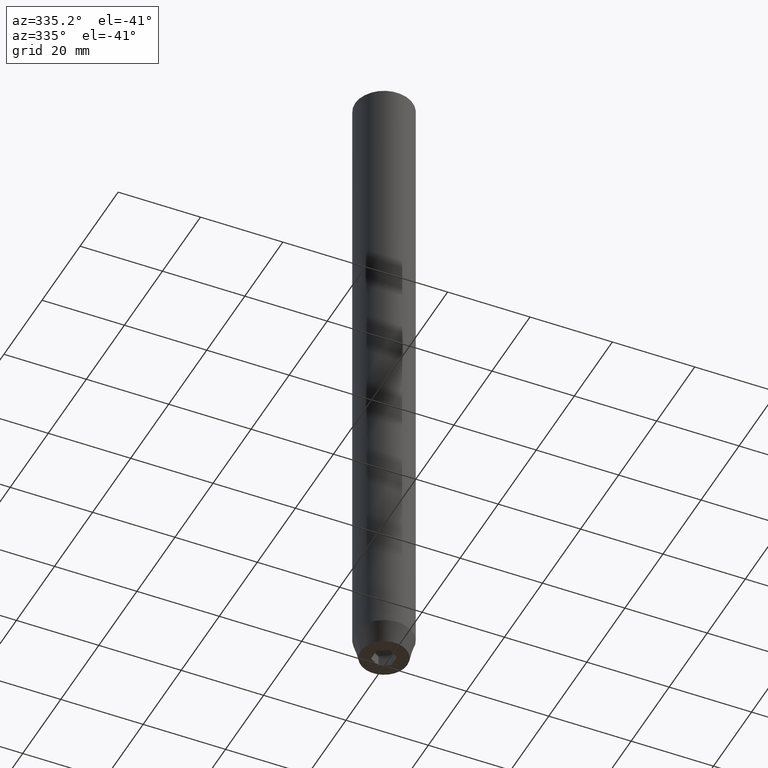
[diagram: clean part render]
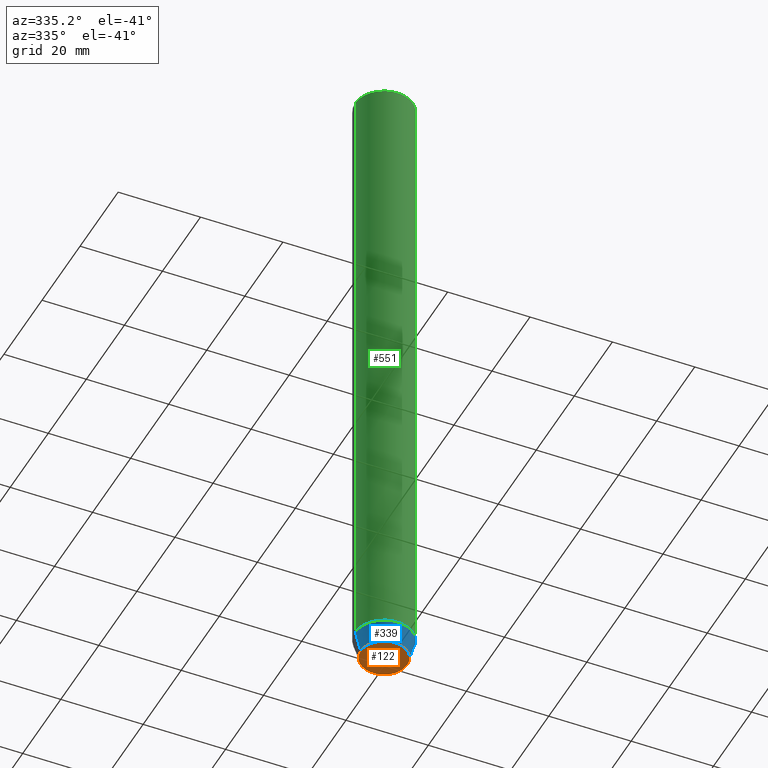
[diagram: same view with three faces highlighted in distinct colors, each labeled with its STEP entity id]
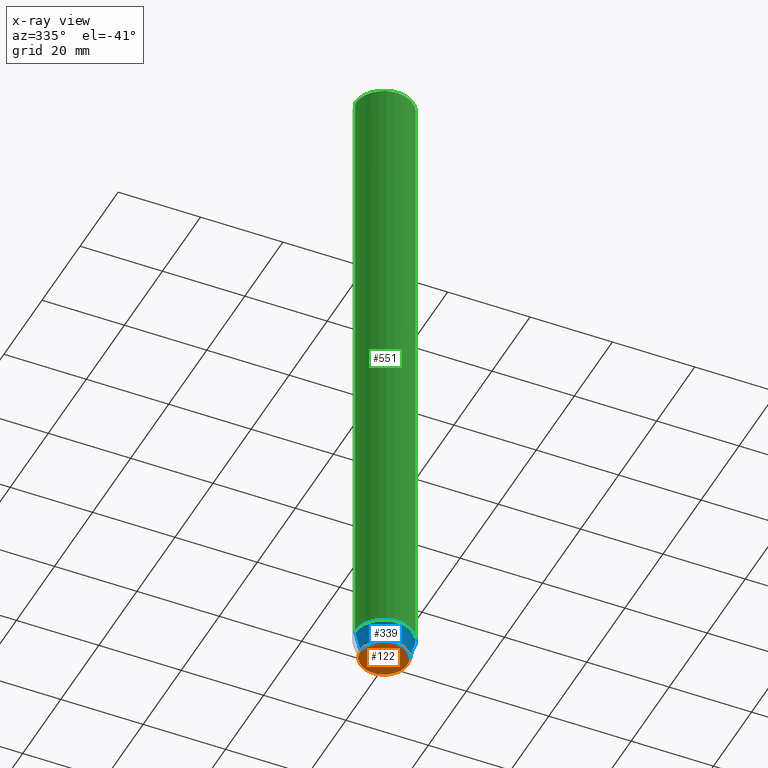
[diagram: x-ray of the same camera — body ghosted, the three highlighted faces saturated]
A machine part, auxiliary view with three faces highlighted in distinct colors.
The next image is the same camera in x-ray (body ghosted, the three faces saturated) — at least one of them is partly hidden behind the body in this view.
Their STEP definitions:

[orange] entity #122 — the highlighted planar face has unit normal (0, 0, -1).
#4 = VERTEX_POINT ( 'NONE', #475 ) ;
#26 = CARTESIAN_POINT ( 'NONE',  ( 2.500000000000000000, 0.000000000000000000, -160.0000000000000000 ) ) ;
#28 = AXIS2_PLACEMENT_3D ( 'NONE', #362, #89, #233 ) ;
#34 = DIRECTION ( 'NONE',  ( 1.000000000000000000, 0.000000000000000000, 0.000000000000000000 ) ) ;
#35 = CIRCLE ( 'NONE', #546, 5.660254037844375752 ) ;
#46 = LINE ( 'NONE', #489, #318 ) ;
#55 = DIRECTION ( 'NONE',  ( 0.8660254037844385966, 0.5000000000000001110, 0.000000000000000000 ) ) ;
#59 = ORIENTED_EDGE ( 'NONE', *, *, #199, .F. ) ;
#60 = ORIENTED_EDGE ( 'NONE', *, *, #565, .F. ) ;
#78 = EDGE_CURVE ( 'NONE', #4, #534, #356, .T. ) ;
#89 = DIRECTION ( 'NONE',  ( 0.000000000000000000, 0.000000000000000000, -1.000000000000000000 ) ) ;
#93 = ORIENTED_EDGE ( 'NONE', *, *, #413, .F. ) ;
#100 = DIRECTION ( 'NONE',  ( -0.000000000000000000, -0.000000000000000000, 1.000000000000000000 ) ) ;
#113 = LINE ( 'NONE', #473, #393 ) ;
#122 = ADVANCED_FACE ( 'NONE', ( #275, #414 ), #181, .T. ) ;
#132 = CARTESIAN_POINT ( 'NONE',  ( 1.250000000000000222, 2.165063509461096825, -160.0000000000000000 ) ) ;
#146 = VECTOR ( 'NONE', #430, 1000.000000000000114 ) ;
#162 = CARTESIAN_POINT ( 'NONE',  ( 5.660254037844375752, 0.000000000000000000, -160.0000000000000000 ) ) ;
#179 = VERTEX_POINT ( 'NONE', #336 ) ;
#181 = PLANE ( 'NONE',  #28 ) ;
#183 = EDGE_LOOP ( 'NONE', ( #93, #60 ) ) ;
#184 = CARTESIAN_POINT ( 'NONE',  ( 2.500000000000000000, 1.443375672974064328, -160.0000000000000000 ) ) ;
#197 = LINE ( 'NONE', #26, #554 ) ;
#199 = EDGE_CURVE ( 'NONE', #534, #179, #207, .T. ) ;
#207 = LINE ( 'NONE', #283, #146 ) ;
#210 = EDGE_CURVE ( 'NONE', #302, #4, #197, .T. ) ;
#216 = VECTOR ( 'NONE', #265, 1000.000000000000000 ) ;
#222 = CARTESIAN_POINT ( 'NONE',  ( 0.000000000000000000, 0.000000000000000000, -160.0000000000000000 ) ) ;
#229 = CIRCLE ( 'NONE', #556, 5.660254037844375752 ) ;
#233 = DIRECTION ( 'NONE',  ( -1.000000000000000000, 0.000000000000000000, -0.000000000000000000 ) ) ;
#265 = DIRECTION ( 'NONE',  ( 0.8660254037844385966, -0.5000000000000001110, 0.000000000000000000 ) ) ;
#275 = FACE_BOUND ( 'NONE', #359, .T. ) ;
#283 = CARTESIAN_POINT ( 'NONE',  ( -1.249999999999999556, -2.165063509461096825, -160.0000000000000000 ) ) ;
#302 = VERTEX_POINT ( 'NONE', #184 ) ;
#305 = ORIENTED_EDGE ( 'NONE', *, *, #78, .F. ) ;
#306 = VECTOR ( 'NONE', #491, 999.9999999999998863 ) ;
#318 = VECTOR ( 'NONE', #348, 1000.000000000000000 ) ;
#320 = ORIENTED_EDGE ( 'NONE', *, *, #446, .F. ) ;
#325 = DIRECTION ( 'NONE',  ( 1.000000000000000000, 0.000000000000000000, 0.000000000000000000 ) ) ;
#335 = ORIENTED_EDGE ( 'NONE', *, *, #523, .F. ) ;
#336 = CARTESIAN_POINT ( 'NONE',  ( -2.500000000000000444, -1.443375672974064328, -160.0000000000000000 ) ) ;
#348 = DIRECTION ( 'NONE',  ( 0.000000000000000000, 1.000000000000000000, 0.000000000000000000 ) ) ;
#356 = LINE ( 'NONE', #532, #306 ) ;
#359 = EDGE_LOOP ( 'NONE', ( #320, #335, #59, #305, #480, #416 ) ) ;
#362 = CARTESIAN_POINT ( 'NONE',  ( 0.000000000000000000, 5.660254037844375752, -160.0000000000000000 ) ) ;
#393 = VECTOR ( 'NONE', #55, 1000.000000000000000 ) ;
#397 = CARTESIAN_POINT ( 'NONE',  ( -5.660254037844375752, 7.752169791919234826E-16, -160.0000000000000000 ) ) ;
#400 = CARTESIAN_POINT ( 'NONE',  ( 0.000000000000000000, 2.886751345948129099, -160.0000000000000000 ) ) ;
#413 = EDGE_CURVE ( 'NONE', #522, #531, #229, .T. ) ;
#414 = FACE_OUTER_BOUND ( 'NONE', #183, .T. ) ;
#416 = ORIENTED_EDGE ( 'NONE', *, *, #542, .F. ) ;
#422 = VERTEX_POINT ( 'NONE', #558 ) ;
#427 = CARTESIAN_POINT ( 'NONE',  ( 0.000000000000000000, 0.000000000000000000, -160.0000000000000000 ) ) ;
#430 = DIRECTION ( 'NONE',  ( -0.8660254037844387076, 0.4999999999999998890, 0.000000000000000000 ) ) ;
#441 = LINE ( 'NONE', #132, #216 ) ;
#444 = CARTESIAN_POINT ( 'NONE',  ( 0.000000000000000000, -2.886751345948128211, -160.0000000000000000 ) ) ;
#446 = EDGE_CURVE ( 'NONE', #422, #557, #113, .T. ) ;
#473 = CARTESIAN_POINT ( 'NONE',  ( -1.250000000000000444, 2.165063509461097269, -160.0000000000000000 ) ) ;
#475 = CARTESIAN_POINT ( 'NONE',  ( 2.500000000000000000, -1.443375672974064106, -160.0000000000000000 ) ) ;
#480 = ORIENTED_EDGE ( 'NONE', *, *, #210, .F. ) ;
#482 = DIRECTION ( 'NONE',  ( -0.000000000000000000, -0.000000000000000000, 1.000000000000000000 ) ) ;
#489 = CARTESIAN_POINT ( 'NONE',  ( -2.500000000000000444, 0.000000000000000000, -160.0000000000000000 ) ) ;
#491 = DIRECTION ( 'NONE',  ( -0.8660254037844387076, -0.5000000000000001110, 0.000000000000000000 ) ) ;
#522 = VERTEX_POINT ( 'NONE', #162 ) ;
#523 = EDGE_CURVE ( 'NONE', #179, #422, #46, .T. ) ;
#531 = VERTEX_POINT ( 'NONE', #397 ) ;
#532 = CARTESIAN_POINT ( 'NONE',  ( 1.249999999999999778, -2.165063509461096380, -160.0000000000000000 ) ) ;
#534 = VERTEX_POINT ( 'NONE', #444 ) ;
#542 = EDGE_CURVE ( 'NONE', #557, #302, #441, .T. ) ;
#546 = AXIS2_PLACEMENT_3D ( 'NONE', #222, #482, #34 ) ;
#552 = DIRECTION ( 'NONE',  ( 0.000000000000000000, -1.000000000000000000, 0.000000000000000000 ) ) ;
#554 = VECTOR ( 'NONE', #552, 1000.000000000000000 ) ;
#556 = AXIS2_PLACEMENT_3D ( 'NONE', #427, #100, #325 ) ;
#557 = VERTEX_POINT ( 'NONE', #400 ) ;
#558 = CARTESIAN_POINT ( 'NONE',  ( -2.500000000000000444, 1.443375672974064772, -160.0000000000000000 ) ) ;
#565 = EDGE_CURVE ( 'NONE', #531, #522, #35, .T. ) ;

[blue] entity #339 — the highlighted conical surface has half-angle 15 deg.
#34 = DIRECTION ( 'NONE',  ( 1.000000000000000000, 0.000000000000000000, 0.000000000000000000 ) ) ;
#35 = CIRCLE ( 'NONE', #546, 5.660254037844375752 ) ;
#61 = EDGE_CURVE ( 'NONE', #531, #194, #309, .T. ) ;
#67 = ORIENTED_EDGE ( 'NONE', *, *, #61, .F. ) ;
#72 = CIRCLE ( 'NONE', #255, 7.000000000000000000 ) ;
#95 = DIRECTION ( 'NONE',  ( -0.000000000000000000, -0.000000000000000000, 1.000000000000000000 ) ) ;
#126 = VECTOR ( 'NONE', #508, 1000.000000000000114 ) ;
#141 = CARTESIAN_POINT ( 'NONE',  ( 0.000000000000000000, 0.000000000000000000, -154.9999999999999716 ) ) ;
#162 = CARTESIAN_POINT ( 'NONE',  ( 5.660254037844375752, 0.000000000000000000, -160.0000000000000000 ) ) ;
#163 = EDGE_LOOP ( 'NONE', ( #67, #237, #470, #223 ) ) ;
#190 = AXIS2_PLACEMENT_3D ( 'NONE', #313, #230, #585 ) ;
#194 = VERTEX_POINT ( 'NONE', #248 ) ;
#222 = CARTESIAN_POINT ( 'NONE',  ( 0.000000000000000000, 0.000000000000000000, -160.0000000000000000 ) ) ;
#223 = ORIENTED_EDGE ( 'NONE', *, *, #354, .F. ) ;
#230 = DIRECTION ( 'NONE',  ( -0.000000000000000000, -0.000000000000000000, 1.000000000000000000 ) ) ;
#237 = ORIENTED_EDGE ( 'NONE', *, *, #565, .T. ) ;
#248 = CARTESIAN_POINT ( 'NONE',  ( -7.000000000000000000, 8.572527594031473190E-16, -154.9999999999999716 ) ) ;
#255 = AXIS2_PLACEMENT_3D ( 'NONE', #141, #95, #277 ) ;
#277 = DIRECTION ( 'NONE',  ( 1.000000000000000000, 0.000000000000000000, 0.000000000000000000 ) ) ;
#290 = CONICAL_SURFACE ( 'NONE', #190, 7.000000000000000000, 0.2617993877991497964 ) ;
#309 = LINE ( 'NONE', #352, #469 ) ;
#313 = CARTESIAN_POINT ( 'NONE',  ( 0.000000000000000000, 0.000000000000000000, -154.9999999999999716 ) ) ;
#315 = CARTESIAN_POINT ( 'NONE',  ( 7.000000000000000000, 0.000000000000000000, -154.9999999999999716 ) ) ;
#339 = ADVANCED_FACE ( 'NONE', ( #548 ), #290, .T. ) ;
#351 = CARTESIAN_POINT ( 'NONE',  ( 7.000000000000000000, 0.000000000000000000, -154.9999999999999716 ) ) ;
#352 = CARTESIAN_POINT ( 'NONE',  ( -7.000000000000000000, 8.572527594031473190E-16, -154.9999999999999716 ) ) ;
#354 = EDGE_CURVE ( 'NONE', #194, #584, #72, .T. ) ;
#389 = EDGE_CURVE ( 'NONE', #522, #584, #537, .T. ) ;
#397 = CARTESIAN_POINT ( 'NONE',  ( -5.660254037844375752, 7.752169791919234826E-16, -160.0000000000000000 ) ) ;
#399 = DIRECTION ( 'NONE',  ( -0.2588190451025210725, 3.169619151431769255E-17, 0.9659258262890680902 ) ) ;
#469 = VECTOR ( 'NONE', #399, 1000.000000000000114 ) ;
#470 = ORIENTED_EDGE ( 'NONE', *, *, #389, .T. ) ;
#482 = DIRECTION ( 'NONE',  ( -0.000000000000000000, -0.000000000000000000, 1.000000000000000000 ) ) ;
#508 = DIRECTION ( 'NONE',  ( 0.2588190451025210725, 0.000000000000000000, 0.9659258262890680902 ) ) ;
#522 = VERTEX_POINT ( 'NONE', #162 ) ;
#531 = VERTEX_POINT ( 'NONE', #397 ) ;
#537 = LINE ( 'NONE', #315, #126 ) ;
#546 = AXIS2_PLACEMENT_3D ( 'NONE', #222, #482, #34 ) ;
#548 = FACE_OUTER_BOUND ( 'NONE', #163, .T. ) ;
#565 = EDGE_CURVE ( 'NONE', #531, #522, #35, .T. ) ;
#584 = VERTEX_POINT ( 'NONE', #351 ) ;
#585 = DIRECTION ( 'NONE',  ( 1.000000000000000000, 0.000000000000000000, 0.000000000000000000 ) ) ;

[green] entity #551 — the highlighted cylindrical surface (edge-blend (fillet) strip) has radius 7 mm, axis along (-0, -0, 1).
#33 = CARTESIAN_POINT ( 'NONE',  ( 7.000000000000000000, 0.000000000000000000, 0.000000000000000000 ) ) ;
#37 = DIRECTION ( 'NONE',  ( -0.000000000000000000, -0.000000000000000000, 1.000000000000000000 ) ) ;
#47 = AXIS2_PLACEMENT_3D ( 'NONE', #394, #37, #353 ) ;
#48 = DIRECTION ( 'NONE',  ( -0.000000000000000000, -0.000000000000000000, 1.000000000000000000 ) ) ;
#51 = EDGE_LOOP ( 'NONE', ( #364, #239, #65, #169 ) ) ;
#65 = ORIENTED_EDGE ( 'NONE', *, *, #257, .T. ) ;
#72 = CIRCLE ( 'NONE', #255, 7.000000000000000000 ) ;
#85 = VECTOR ( 'NONE', #485, 1000.000000000000000 ) ;
#87 = CARTESIAN_POINT ( 'NONE',  ( -7.000000000000000000, 8.572527594031473190E-16, -0.5000000000000186517 ) ) ;
#94 = VERTEX_POINT ( 'NONE', #264 ) ;
#95 = DIRECTION ( 'NONE',  ( -0.000000000000000000, -0.000000000000000000, 1.000000000000000000 ) ) ;
#116 = CARTESIAN_POINT ( 'NONE',  ( 0.000000000000000000, 0.000000000000000000, -0.5000000000000186517 ) ) ;
#138 = CARTESIAN_POINT ( 'NONE',  ( -7.000000000000000000, 8.572527594031473190E-16, 0.000000000000000000 ) ) ;
#141 = CARTESIAN_POINT ( 'NONE',  ( 0.000000000000000000, 0.000000000000000000, -154.9999999999999716 ) ) ;
#168 = EDGE_CURVE ( 'NONE', #94, #355, #555, .T. ) ;
#169 = ORIENTED_EDGE ( 'NONE', *, *, #168, .T. ) ;
#173 = FACE_OUTER_BOUND ( 'NONE', #51, .T. ) ;
#194 = VERTEX_POINT ( 'NONE', #248 ) ;
#214 = LINE ( 'NONE', #33, #85 ) ;
#239 = ORIENTED_EDGE ( 'NONE', *, *, #354, .T. ) ;
#248 = CARTESIAN_POINT ( 'NONE',  ( -7.000000000000000000, 8.572527594031473190E-16, -154.9999999999999716 ) ) ;
#255 = AXIS2_PLACEMENT_3D ( 'NONE', #141, #95, #277 ) ;
#257 = EDGE_CURVE ( 'NONE', #584, #94, #214, .T. ) ;
#264 = CARTESIAN_POINT ( 'NONE',  ( 7.000000000000000000, 0.000000000000000000, -0.5000000000000186517 ) ) ;
#266 = LINE ( 'NONE', #138, #519 ) ;
#277 = DIRECTION ( 'NONE',  ( 1.000000000000000000, 0.000000000000000000, 0.000000000000000000 ) ) ;
#351 = CARTESIAN_POINT ( 'NONE',  ( 7.000000000000000000, 0.000000000000000000, -154.9999999999999716 ) ) ;
#353 = DIRECTION ( 'NONE',  ( 1.000000000000000000, 0.000000000000000000, 0.000000000000000000 ) ) ;
#354 = EDGE_CURVE ( 'NONE', #194, #584, #72, .T. ) ;
#355 = VERTEX_POINT ( 'NONE', #87 ) ;
#364 = ORIENTED_EDGE ( 'NONE', *, *, #375, .F. ) ;
#375 = EDGE_CURVE ( 'NONE', #194, #355, #266, .T. ) ;
#394 = CARTESIAN_POINT ( 'NONE',  ( 0.000000000000000000, 0.000000000000000000, 0.000000000000000000 ) ) ;
#438 = CYLINDRICAL_SURFACE ( 'NONE', #47, 7.000000000000000000 ) ;
#440 = AXIS2_PLACEMENT_3D ( 'NONE', #116, #477, #521 ) ;
#477 = DIRECTION ( 'NONE',  ( 0.000000000000000000, 0.000000000000000000, -1.000000000000000000 ) ) ;
#485 = DIRECTION ( 'NONE',  ( -0.000000000000000000, -0.000000000000000000, 1.000000000000000000 ) ) ;
#519 = VECTOR ( 'NONE', #48, 1000.000000000000000 ) ;
#521 = DIRECTION ( 'NONE',  ( 1.000000000000000000, 0.000000000000000000, 0.000000000000000000 ) ) ;
#551 = ADVANCED_FACE ( 'NONE', ( #173 ), #438, .T. ) ;
#555 = CIRCLE ( 'NONE', #440, 7.000000000000000000 ) ;
#584 = VERTEX_POINT ( 'NONE', #351 ) ;